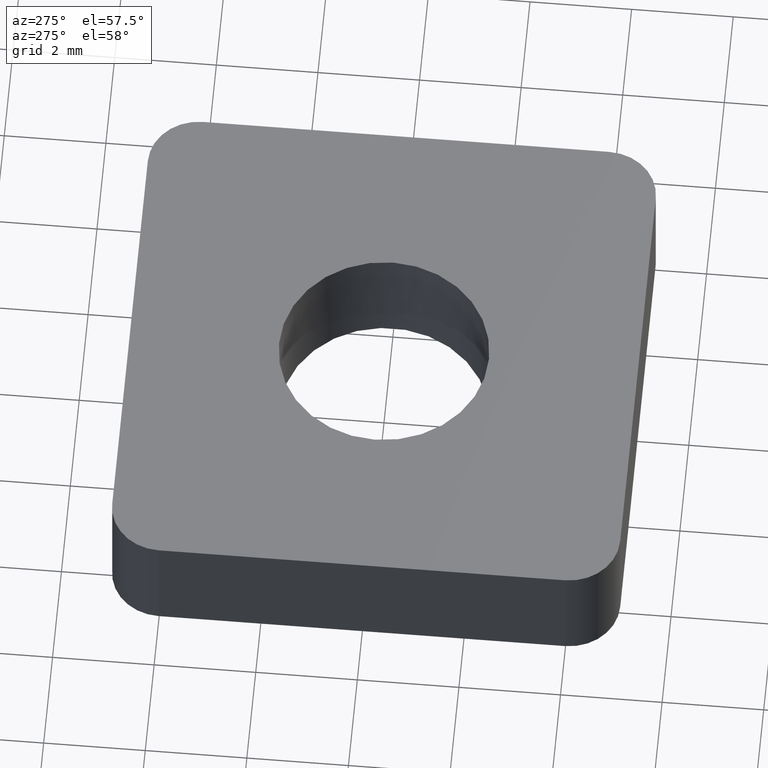
[diagram: clean part render]
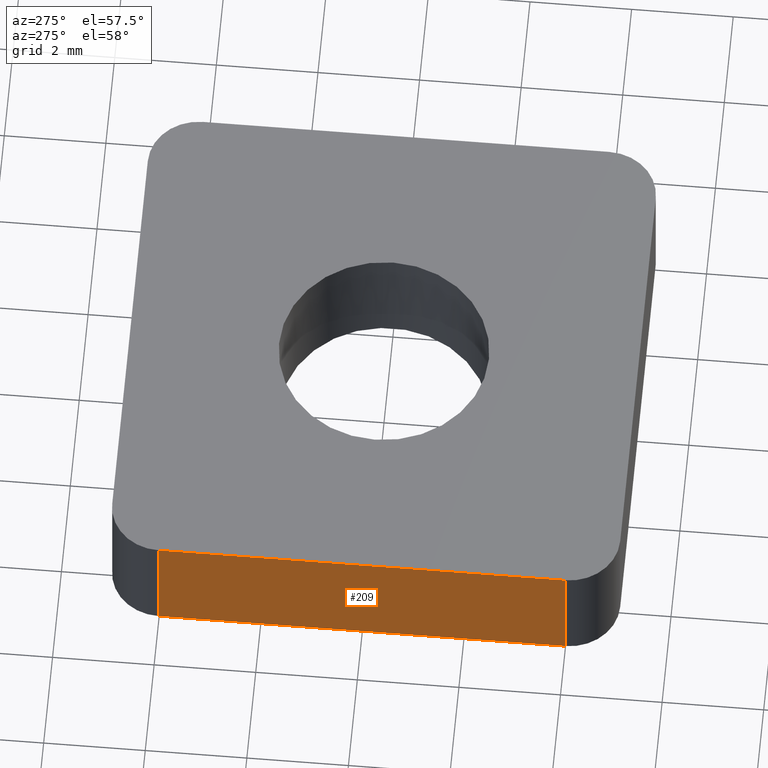
[diagram: same view with one face highlighted and labeled with its STEP entity id]
A machine part, auxiliary view. The second image highlights one B-rep face of the part: STEP entity #209.
In plain terms, the highlighted planar face has unit normal (1, 0, 0).
Its self-contained STEP definition (entity closure, byte-faithful):
#21=PLANE('',#251);
#32=FACE_OUTER_BOUND('',#44,.T.);
#44=EDGE_LOOP('',(#181,#182,#183,#184));
#48=LINE('',#330,#65);
#53=LINE('',#342,#70);
#57=LINE('',#357,#74);
#63=LINE('',#373,#80);
#65=VECTOR('',#268,10.);
#70=VECTOR('',#279,7.99999999999989);
#74=VECTOR('',#293,10.);
#80=VECTOR('',#313,7.99999999999989);
#96=VERTEX_POINT('',#327);
#97=VERTEX_POINT('',#329);
#101=VERTEX_POINT('',#341);
#106=VERTEX_POINT('',#353);
#116=EDGE_CURVE('',#96,#97,#48,.T.);
#122=EDGE_CURVE('',#101,#97,#53,.T.);
#130=EDGE_CURVE('',#101,#106,#57,.T.);
#138=EDGE_CURVE('',#106,#96,#63,.T.);
#181=ORIENTED_EDGE('',*,*,#116,.F.);
#182=ORIENTED_EDGE('',*,*,#138,.F.);
#183=ORIENTED_EDGE('',*,*,#130,.F.);
#184=ORIENTED_EDGE('',*,*,#122,.T.);
#209=ADVANCED_FACE('',(#32),#21,.F.);
#251=AXIS2_PLACEMENT_3D('',#372,#311,#312);
#268=DIRECTION('',(0.,0.,-1.));
#279=DIRECTION('',(0.,-1.,0.));
#293=DIRECTION('',(0.,0.,1.));
#311=DIRECTION('center_axis',(1.,0.,0.));
#312=DIRECTION('ref_axis',(0.,0.,-1.));
#313=DIRECTION('',(0.,-1.,0.));
#327=CARTESIAN_POINT('',(-5.,-4.,0.));
#329=CARTESIAN_POINT('',(-5.,-4.,-2.4));
#330=CARTESIAN_POINT('',(-5.,-4.,0.));
#341=CARTESIAN_POINT('',(-5.,4.,-2.4));
#342=CARTESIAN_POINT('',(-5.,16.4999999999999,-2.4));
#353=CARTESIAN_POINT('',(-5.,4.,0.));
#357=CARTESIAN_POINT('',(-5.,4.,0.));
#372=CARTESIAN_POINT('Origin',(-5.,16.4999999999999,0.));
#373=CARTESIAN_POINT('',(-5.,16.4999999999999,0.));